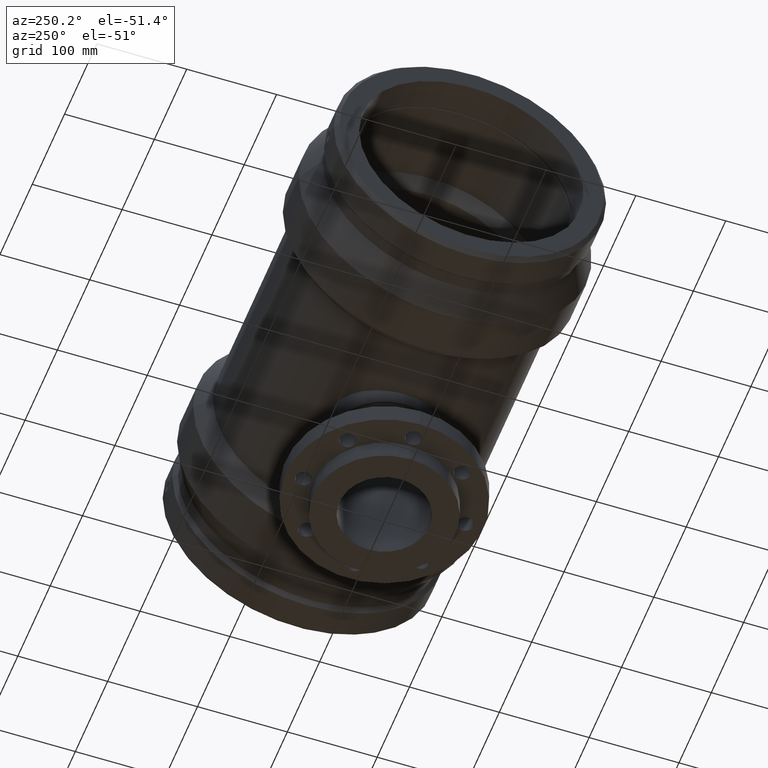
[diagram: clean part render]
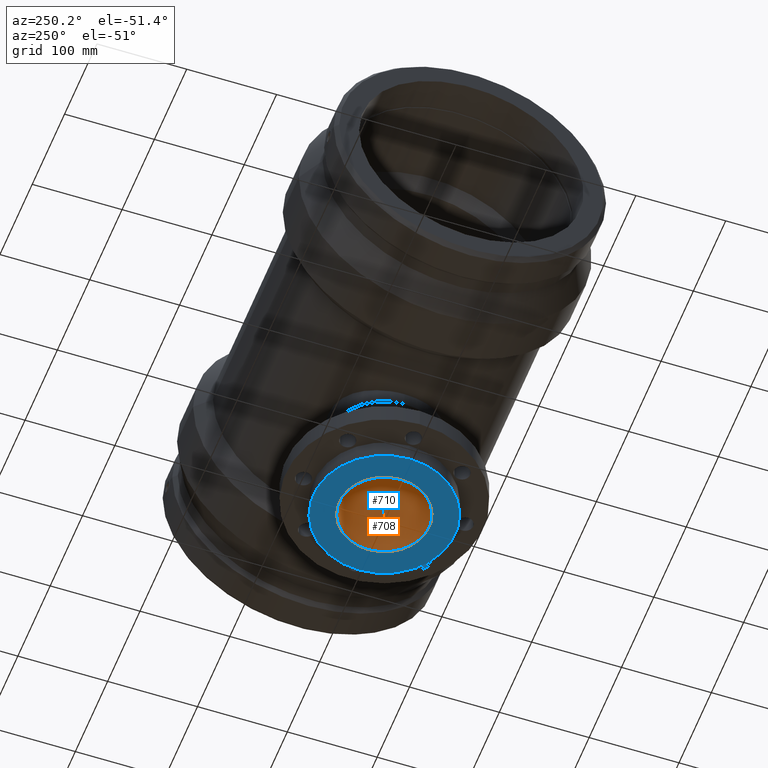
[diagram: same view with the hole feature highlighted: cylindrical wall and planar end face, labeled with their STEP entity ids]
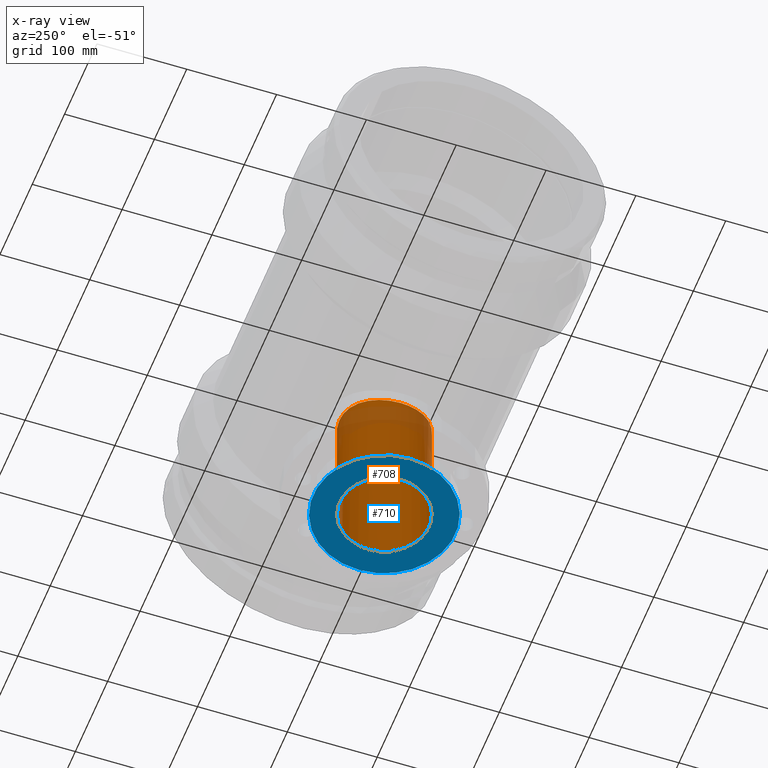
[diagram: x-ray of the same camera — body ghosted, the hole faces saturated]
A machine part, auxiliary view. The highlighted faces form one hole feature of diameter 100 mm: the cylindrical wall (entity #708, orange) and its adjacent planar end face (entity #710, blue) — they share a circular edge in the B-rep.
The next image is the same camera in x-ray (body ghosted, the hole faces saturated) — the bore reads through the body.
Wall:
#52=FACE_BOUND('',#293,.T.);
#137=CIRCLE('',#786,50.);
#193=CYLINDRICAL_SURFACE('',#785,50.);
#224=FACE_OUTER_BOUND('',#292,.T.);
#292=EDGE_LOOP('',(#578));
#293=EDGE_LOOP('',(#579));
#414=B_SPLINE_CURVE_WITH_KNOTS('',3,(#1267,#1268,#1269,#1270,#1271,#1272,
#1273,#1274,#1275,#1276,#1277,#1278,#1279,#1280,#1281,#1282,#1283,#1284,
#1285,#1286,#1287,#1288,#1289,#1290,#1291,#1292,#1293,#1294,#1295,#1296,
#1297,#1298,#1299,#1300,#1301,#1302,#1303,#1304,#1305,#1306,#1307,#1308,
#1309,#1310,#1311,#1312,#1313,#1314,#1315,#1316,#1317,#1318,#1319,#1320,
#1321,#1322,#1323,#1324,#1325,#1326,#1327,#1328,#1329,#1330,#1331,#1332,
#1333,#1334,#1335,#1336,#1337,#1338,#1339,#1340,#1341,#1342,#1343,#1344,
#1345,#1346,#1347,#1348,#1349,#1350,#1351,#1352,#1353,#1354,#1355,#1356,
#1357,#1358,#1359,#1360,#1361,#1362,#1363),.UNSPECIFIED.,.T.,.F.,(4,3,3,
3,3,3,3,3,3,3,3,3,3,3,3,3,3,3,3,3,3,3,3,3,3,3,3,3,3,3,3,3,4),(0.,0.950249367278912,
1.90049873455782,2.85074810183674,3.80099746911565,4.75076261386132,5.70052775860698,
6.65029290335265,7.60005804809832,8.54982319284398,9.49958833758965,10.4493534823353,
11.399118627081,12.3493679943599,13.2996173616388,14.2498667289177,15.2001160961966,
16.1503654634755,17.1006148307545,18.0508641980334,19.0011135653123,19.950878710058,
20.9006438548036,21.8504089995493,22.8001741442949,23.7499392890406,24.6997044337863,
25.6494695785319,26.5992347232776,27.5494840905565,28.4997334578354,29.4499828251144,
30.4002321923933),.UNSPECIFIED.);
#419=VERTEX_POINT('',#1266);
#437=VERTEX_POINT('',#1443);
#488=EDGE_CURVE('',#419,#419,#414,.T.);
#507=EDGE_CURVE('',#437,#437,#137,.T.);
#578=ORIENTED_EDGE('',*,*,#507,.T.);
#579=ORIENTED_EDGE('',*,*,#488,.F.);
#708=ADVANCED_FACE('',(#224,#52),#193,.F.);
#785=AXIS2_PLACEMENT_3D('',#1442,#935,#936);
#786=AXIS2_PLACEMENT_3D('',#1444,#937,#938);
#935=DIRECTION('center_axis',(-1.22464679914735E-16,0.,-1.));
#936=DIRECTION('ref_axis',(-1.,0.,0.));
#937=DIRECTION('center_axis',(-1.22464679914735E-16,0.,-1.));
#938=DIRECTION('ref_axis',(1.,0.,-1.22464679914735E-16));
#1266=CARTESIAN_POINT('',(-1.55431223447522E-14,50.,-137.916242698241));
#1267=CARTESIAN_POINT('Ctrl Pts',(-1.77635683940025E-14,50.,-137.916242698241));
#1268=CARTESIAN_POINT('Ctrl Pts',(3.16749789092969,50.,-137.916242698241));
#1269=CARTESIAN_POINT('Ctrl Pts',(6.43414198264799,49.694167839544,-138.028401049931));
#1270=CARTESIAN_POINT('Ctrl Pts',(9.67452803034247,49.055106843122,-138.255149967768));
#1271=CARTESIAN_POINT('Ctrl Pts',(12.9149140780369,48.4160458467001,-138.481898885604));
#1272=CARTESIAN_POINT('Ctrl Pts',(16.1291486498228,47.4441296802487,-138.822768910149));
#1273=CARTESIAN_POINT('Ctrl Pts',(19.2045658268531,46.1647555111293,-139.246922223071));
#1274=CARTESIAN_POINT('Ctrl Pts',(22.2799830038834,44.88538134201,-139.671075535993));
#1275=CARTESIAN_POINT('Ctrl Pts',(25.2219667111129,43.296519597165,-140.178260694445));
#1276=CARTESIAN_POINT('Ctrl Pts',(27.9393034136318,41.4655920584889,-140.717783791669));
#1277=CARTESIAN_POINT('Ctrl Pts',(30.6566401161507,39.6346645198128,-141.257306888894));
#1278=CARTESIAN_POINT('Ctrl Pts',(33.149329915056,37.5613482035987,-141.828070873408));
#1279=CARTESIAN_POINT('Ctrl Pts',(35.3553390593274,35.3553390593274,-142.375875765524));
#1280=CARTESIAN_POINT('Ctrl Pts',(37.5602240783186,33.1504540403362,-142.923401510417));
#1281=CARTESIAN_POINT('Ctrl Pts',(39.6334042467995,30.6582971894664,-143.487356633178));
#1282=CARTESIAN_POINT('Ctrl Pts',(41.4645759551654,27.9408113851104,-144.014586272161));
#1283=CARTESIAN_POINT('Ctrl Pts',(43.2957476635314,25.2233255807543,-144.541815911143));
#1284=CARTESIAN_POINT('Ctrl Pts',(44.8851844013421,22.2805100856913,-145.031366148263));
#1285=CARTESIAN_POINT('Ctrl Pts',(46.1648816449385,19.2042626182009,-145.437568383452));
#1286=CARTESIAN_POINT('Ctrl Pts',(47.4445788885348,16.1280151507104,-145.84377061864));
#1287=CARTESIAN_POINT('Ctrl Pts',(48.416569336587,12.9129769598327,-146.166657573175));
#1288=CARTESIAN_POINT('Ctrl Pts',(49.0555134496138,9.67246608651358,-146.380782207929));
#1289=CARTESIAN_POINT('Ctrl Pts',(49.6944575626406,6.43195521319445,-146.594906842684));
#1290=CARTESIAN_POINT('Ctrl Pts',(50.,3.1658838158189,-146.7));
#1291=CARTESIAN_POINT('Ctrl Pts',(50.,6.93889390390723E-15,-146.7));
#1292=CARTESIAN_POINT('Ctrl Pts',(50.,-3.16588381581888,-146.7));
#1293=CARTESIAN_POINT('Ctrl Pts',(49.6944575626406,-6.43195521319444,-146.594906842684));
#1294=CARTESIAN_POINT('Ctrl Pts',(49.0555134496138,-9.67246608651357,-146.380782207929));
#1295=CARTESIAN_POINT('Ctrl Pts',(48.416569336587,-12.9129769598327,-146.166657573175));
#1296=CARTESIAN_POINT('Ctrl Pts',(47.4445788885348,-16.1280151507104,-145.84377061864));
#1297=CARTESIAN_POINT('Ctrl Pts',(46.1648816449385,-19.2042626182009,-145.437568383452));
#1298=CARTESIAN_POINT('Ctrl Pts',(44.8851844013421,-22.2805100856913,-145.031366148263));
#1299=CARTESIAN_POINT('Ctrl Pts',(43.2957476635314,-25.2233255807543,-144.541815911143));
#1300=CARTESIAN_POINT('Ctrl Pts',(41.4645759551655,-27.9408113851104,-144.014586272161));
#1301=CARTESIAN_POINT('Ctrl Pts',(39.6334042467995,-30.6582971894664,-143.487356633179));
#1302=CARTESIAN_POINT('Ctrl Pts',(37.5602240783186,-33.1504540403362,-142.923401510417));
#1303=CARTESIAN_POINT('Ctrl Pts',(35.3553390593274,-35.3553390593274,-142.375875765524));
#1304=CARTESIAN_POINT('Ctrl Pts',(33.149329915056,-37.5613482035987,-141.828070873408));
#1305=CARTESIAN_POINT('Ctrl Pts',(30.6566401161507,-39.6346645198128,-141.257306888894));
#1306=CARTESIAN_POINT('Ctrl Pts',(27.9393034136318,-41.4655920584889,-140.717783791669));
#1307=CARTESIAN_POINT('Ctrl Pts',(25.221966711113,-43.296519597165,-140.178260694445));
#1308=CARTESIAN_POINT('Ctrl Pts',(22.2799830038834,-44.8853813420099,-139.671075535993));
#1309=CARTESIAN_POINT('Ctrl Pts',(19.2045658268531,-46.1647555111293,-139.246922223071));
#1310=CARTESIAN_POINT('Ctrl Pts',(16.1291486498228,-47.4441296802487,-138.822768910149));
#1311=CARTESIAN_POINT('Ctrl Pts',(12.9149140780369,-48.4160458467001,-138.481898885604));
#1312=CARTESIAN_POINT('Ctrl Pts',(9.67452803034246,-49.055106843122,-138.255149967768));
#1313=CARTESIAN_POINT('Ctrl Pts',(6.43414198264799,-49.694167839544,-138.028401049931));
#1314=CARTESIAN_POINT('Ctrl Pts',(3.16749789092969,-50.,-137.916242698241));
#1315=CARTESIAN_POINT('Ctrl Pts',(-1.62418497061974E-14,-50.,-137.916242698241));
#1316=CARTESIAN_POINT('Ctrl Pts',(-3.16749789092972,-50.,-137.916242698241));
#1317=CARTESIAN_POINT('Ctrl Pts',(-6.43414198264802,-49.694167839544,-138.028401049931));
#1318=CARTESIAN_POINT('Ctrl Pts',(-9.67452803034248,-49.055106843122,-138.255149967768));
#1319=CARTESIAN_POINT('Ctrl Pts',(-12.914914078037,-48.4160458467001,-138.481898885604));
#1320=CARTESIAN_POINT('Ctrl Pts',(-16.1291486498229,-47.4441296802487,-138.822768910149));
#1321=CARTESIAN_POINT('Ctrl Pts',(-19.2045658268532,-46.1647555111293,-139.246922223071));
#1322=CARTESIAN_POINT('Ctrl Pts',(-22.2799830038835,-44.88538134201,-139.671075535993));
#1323=CARTESIAN_POINT('Ctrl Pts',(-25.221966711113,-43.296519597165,-140.178260694445));
#1324=CARTESIAN_POINT('Ctrl Pts',(-27.9393034136318,-41.4655920584889,-140.717783791669));
#1325=CARTESIAN_POINT('Ctrl Pts',(-30.6566401161507,-39.6346645198128,-141.257306888894));
#1326=CARTESIAN_POINT('Ctrl Pts',(-33.149329915056,-37.5613482035987,-141.828070873408));
#1327=CARTESIAN_POINT('Ctrl Pts',(-35.3553390593274,-35.3553390593274,-142.375875765524));
#1328=CARTESIAN_POINT('Ctrl Pts',(-37.5602240783186,-33.1504540403362,-142.923401510417));
#1329=CARTESIAN_POINT('Ctrl Pts',(-39.6334042467996,-30.6582971894664,-143.487356633178));
#1330=CARTESIAN_POINT('Ctrl Pts',(-41.4645759551655,-27.9408113851104,-144.014586272161));
#1331=CARTESIAN_POINT('Ctrl Pts',(-43.2957476635314,-25.2233255807543,-144.541815911143));
#1332=CARTESIAN_POINT('Ctrl Pts',(-44.8851844013422,-22.2805100856914,-145.031366148263));
#1333=CARTESIAN_POINT('Ctrl Pts',(-46.1648816449385,-19.2042626182009,-145.437568383452));
#1334=CARTESIAN_POINT('Ctrl Pts',(-47.4445788885348,-16.1280151507104,-145.84377061864));
#1335=CARTESIAN_POINT('Ctrl Pts',(-48.4165693365871,-12.9129769598327,-146.166657573175));
#1336=CARTESIAN_POINT('Ctrl Pts',(-49.0555134496138,-9.67246608651361,-146.380782207929));
#1337=CARTESIAN_POINT('Ctrl Pts',(-49.6944575626407,-6.43195521319448,-146.594906842684));
#1338=CARTESIAN_POINT('Ctrl Pts',(-50.,-3.16588381581892,-146.7));
#1339=CARTESIAN_POINT('Ctrl Pts',(-50.,-1.38777878078145E-14,-146.7));
#1340=CARTESIAN_POINT('Ctrl Pts',(-50.,3.1658838158189,-146.7));
#1341=CARTESIAN_POINT('Ctrl Pts',(-49.6944575626407,6.43195521319445,-146.594906842684));
#1342=CARTESIAN_POINT('Ctrl Pts',(-49.0555134496139,9.67246608651358,-146.380782207929));
#1343=CARTESIAN_POINT('Ctrl Pts',(-48.4165693365871,12.9129769598327,-146.166657573175));
#1344=CARTESIAN_POINT('Ctrl Pts',(-47.4445788885348,16.1280151507104,-145.84377061864));
#1345=CARTESIAN_POINT('Ctrl Pts',(-46.1648816449385,19.2042626182009,-145.437568383452));
#1346=CARTESIAN_POINT('Ctrl Pts',(-44.8851844013422,22.2805100856913,-145.031366148263));
#1347=CARTESIAN_POINT('Ctrl Pts',(-43.2957476635314,25.2233255807543,-144.541815911143));
#1348=CARTESIAN_POINT('Ctrl Pts',(-41.4645759551655,27.9408113851104,-144.014586272161));
#1349=CARTESIAN_POINT('Ctrl Pts',(-39.6334042467996,30.6582971894664,-143.487356633179));
#1350=CARTESIAN_POINT('Ctrl Pts',(-37.5602240783186,33.1504540403362,-142.923401510417));
#1351=CARTESIAN_POINT('Ctrl Pts',(-35.3553390593274,35.3553390593274,-142.375875765524));
#1352=CARTESIAN_POINT('Ctrl Pts',(-33.1493299150561,37.5613482035987,-141.828070873408));
#1353=CARTESIAN_POINT('Ctrl Pts',(-30.6566401161507,39.6346645198128,-141.257306888894));
#1354=CARTESIAN_POINT('Ctrl Pts',(-27.9393034136318,41.4655920584889,-140.717783791669));
#1355=CARTESIAN_POINT('Ctrl Pts',(-25.221966711113,43.296519597165,-140.178260694445));
#1356=CARTESIAN_POINT('Ctrl Pts',(-22.2799830038835,44.88538134201,-139.671075535993));
#1357=CARTESIAN_POINT('Ctrl Pts',(-19.2045658268532,46.1647555111293,-139.246922223071));
#1358=CARTESIAN_POINT('Ctrl Pts',(-16.1291486498229,47.4441296802487,-138.822768910149));
#1359=CARTESIAN_POINT('Ctrl Pts',(-12.914914078037,48.4160458467001,-138.481898885604));
#1360=CARTESIAN_POINT('Ctrl Pts',(-9.67452803034249,49.055106843122,-138.255149967768));
#1361=CARTESIAN_POINT('Ctrl Pts',(-6.43414198264802,49.694167839544,-138.028401049931));
#1362=CARTESIAN_POINT('Ctrl Pts',(-3.16749789092972,50.,-137.916242698241));
#1363=CARTESIAN_POINT('Ctrl Pts',(-1.6889868517083E-14,50.,-137.916242698241));
#1442=CARTESIAN_POINT('Origin',(-1.68388934882761E-14,0.,-137.5));
#1443=CARTESIAN_POINT('',(-50.,0.,-275.));
#1444=CARTESIAN_POINT('Origin',(-3.36777869765522E-14,0.,-275.));
End face:
#30=PLANE('',#789);
#54=FACE_BOUND('',#297,.T.);
#137=CIRCLE('',#786,50.);
#139=CIRCLE('',#790,79.);
#226=FACE_OUTER_BOUND('',#296,.T.);
#296=EDGE_LOOP('',(#582));
#297=EDGE_LOOP('',(#583));
#437=VERTEX_POINT('',#1443);
#440=VERTEX_POINT('',#1516);
#507=EDGE_CURVE('',#437,#437,#137,.T.);
#510=EDGE_CURVE('',#440,#440,#139,.T.);
#582=ORIENTED_EDGE('',*,*,#510,.T.);
#583=ORIENTED_EDGE('',*,*,#507,.F.);
#710=ADVANCED_FACE('',(#226,#54),#30,.T.);
#786=AXIS2_PLACEMENT_3D('',#1444,#937,#938);
#789=AXIS2_PLACEMENT_3D('',#1515,#943,#944);
#790=AXIS2_PLACEMENT_3D('',#1517,#945,#946);
#937=DIRECTION('center_axis',(-1.22464679914735E-16,0.,-1.));
#938=DIRECTION('ref_axis',(1.,0.,-1.22464679914735E-16));
#943=DIRECTION('center_axis',(-1.22464679914735E-16,0.,-1.));
#944=DIRECTION('ref_axis',(-1.,0.,0.));
#945=DIRECTION('center_axis',(-1.22464679914735E-16,0.,-1.));
#946=DIRECTION('ref_axis',(1.,0.,-1.22464679914735E-16));
#1443=CARTESIAN_POINT('',(-50.,0.,-275.));
#1444=CARTESIAN_POINT('Origin',(-3.36777869765522E-14,0.,-275.));
#1515=CARTESIAN_POINT('Origin',(-50.,0.,-275.));
#1516=CARTESIAN_POINT('',(-79.,0.,-275.));
#1517=CARTESIAN_POINT('Origin',(-3.36777869765522E-14,0.,-275.));